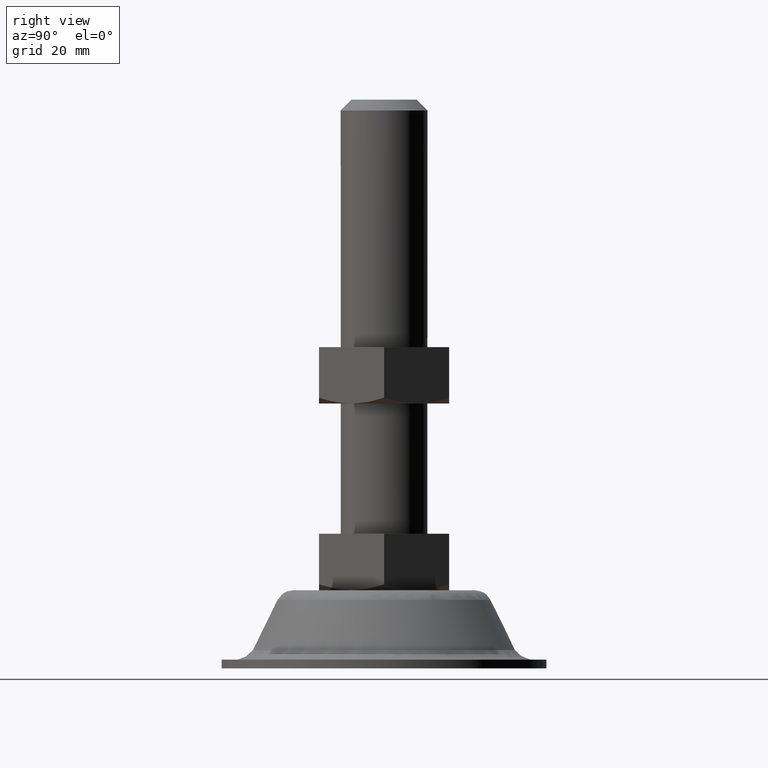
[diagram: clean part render]
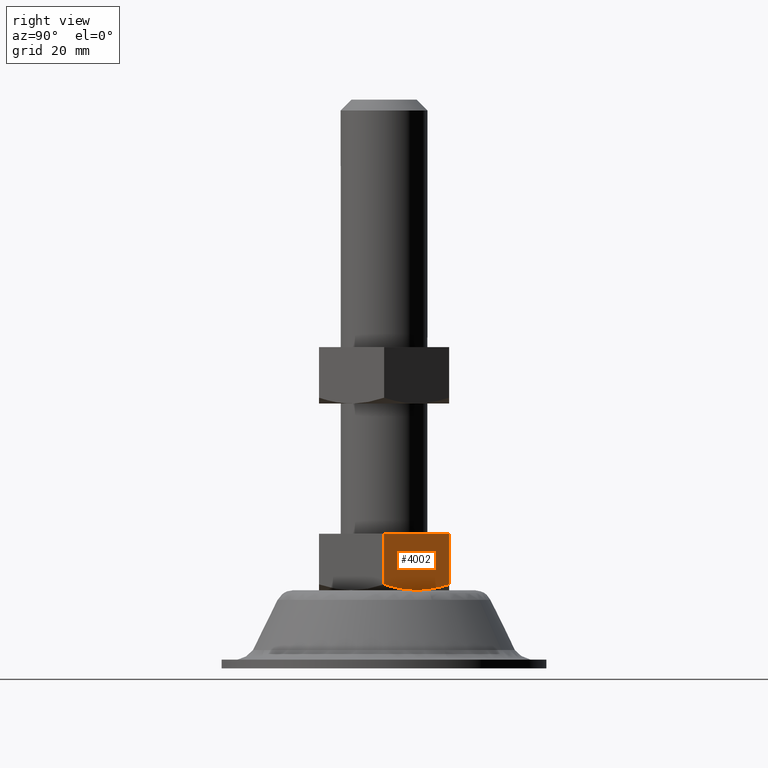
[diagram: same view with one face highlighted and labeled with its STEP entity id]
A machine part, right view. The second image highlights one B-rep face of the part: STEP entity #4002.
In plain terms, the highlighted face is a freeform B-spline surface patch.
Its self-contained STEP definition (entity closure, byte-faithful):
#2701=CARTESIAN_POINT('',(8.639746000000001,15.0,19.345671394023402));
#2702=VERTEX_POINT('',#2701);
#2725=CARTESIAN_POINT('',(17.300000000000001,-1.447629E-015,19.339745951230899));
#2726=VERTEX_POINT('',#2725);
#2727=CARTESIAN_POINT('',(17.300000000000001,-1.447629E-015,19.339745951230899));
#2728=CARTESIAN_POINT('',(16.592941722767890,1.224660865429819,18.931525664537759));
#2729=CARTESIAN_POINT('',(15.880722203566361,2.458261264219844,18.595166574799990));
#2730=CARTESIAN_POINT('',(14.801235094892681,4.327987790728773,18.245981053792178));
#2731=CARTESIAN_POINT('',(14.439541958482760,4.954458682477307,18.155540189446029));
#2732=CARTESIAN_POINT('',(13.711936844397590,6.214707713426930,18.033398389028552));
#2733=CARTESIAN_POINT('',(13.346021212827759,6.848492181359092,18.001748326998712));
#2734=CARTESIAN_POINT('',(12.885799685170850,7.645619253481176,18.001546577077889));
#2735=CARTESIAN_POINT('',(12.793614645803340,7.805288426061184,18.003465697697191));
#2736=CARTESIAN_POINT('',(12.608961067811620,8.125117806339850,18.011251166375111));
#2737=CARTESIAN_POINT('',(12.516661840701390,8.284984757892692,18.017113104138250));
#2738=CARTESIAN_POINT('',(12.240427566274510,8.763436558082763,18.040486526452241));
#2739=CARTESIAN_POINT('',(12.056912984918890,9.081293138309430,18.063800979005290));
#2740=CARTESIAN_POINT('',(11.508210259183770,10.031674141687260,18.155931109065261));
#2741=CARTESIAN_POINT('',(11.144867414517419,10.661002411966059,18.246985155436430));
#2742=CARTESIAN_POINT('',(10.061320491401830,12.537760743388411,18.598259512653328));
#2743=CARTESIAN_POINT('',(9.347572270797711,13.774008930688920,18.936281682498429));
#2744=CARTESIAN_POINT('',(8.639746000000001,15.0,19.345671394023402));
#2745=B_SPLINE_CURVE_WITH_KNOTS('',3,(#2727,#2728,#2729,#2730,#2731,#2732,#2733,#2734,#2735,#2736,#2737,#2738,#2739,#2740,#2741,#2742,#2743,#2744),.UNSPECIFIED.,.F.,.U.,(4,2,2,2,2,2,2,2,4),(0.0,0.250000000000000,0.375000000000000,0.500000000000001,0.531250000000001,0.562500000000001,0.625000000000001,0.750000000000000,1.0),.UNSPECIFIED.);
#2746=EDGE_CURVE('',#2726,#2702,#2745,.T.);
#3894=CARTESIAN_POINT('',(17.300000000000001,0.0,31.0));
#3895=VERTEX_POINT('',#3894);
#3901=CARTESIAN_POINT('',(8.639746000000001,15.0,31.0));
#3902=VERTEX_POINT('',#3901);
#3903=CARTESIAN_POINT('',(8.639746000000001,15.0,31.0));
#3904=CARTESIAN_POINT('',(17.300000000000001,0.0,31.0));
#3905=QUASI_UNIFORM_CURVE('',1,(#3903,#3904),.UNSPECIFIED.,.F.,.U.);
#3906=EDGE_CURVE('',#3902,#3895,#3905,.T.);
#3978=CARTESIAN_POINT('',(17.300000000000001,0.0,31.0));
#3979=CARTESIAN_POINT('',(17.300000000000001,-1.447629E-015,19.339745951230899));
#3980=QUASI_UNIFORM_CURVE('',1,(#3978,#3979),.UNSPECIFIED.,.F.,.U.);
#3981=EDGE_CURVE('',#3895,#2726,#3980,.T.);
#3987=CARTESIAN_POINT('',(17.732579507922232,-0.749249689308546,17.352318113454579));
#3988=CARTESIAN_POINT('',(8.207166104934267,15.749250359860810,17.352318113454579));
#3989=CARTESIAN_POINT('',(17.732579507922232,-0.749249689308546,31.649270966330651));
#3990=CARTESIAN_POINT('',(8.207166104934267,15.749250359860810,31.649270966330651));
#3991=B_SPLINE_SURFACE_WITH_KNOTS('',1,1,((#3987,#3989),(#3988,#3990)),.UNSPECIFIED.,.F.,.F.,.U.,(2,2),(2,2),(0.0,19.050826868413459),(0.0,14.296952852876069),.UNSPECIFIED.);
#3992=ORIENTED_EDGE('',*,*,#3981,.T.);
#3993=ORIENTED_EDGE('',*,*,#2746,.T.);
#3994=CARTESIAN_POINT('',(8.639746000000001,15.0,31.0));
#3995=CARTESIAN_POINT('',(8.639746000000001,15.0,19.345671394023402));
#3996=QUASI_UNIFORM_CURVE('',1,(#3994,#3995),.UNSPECIFIED.,.F.,.U.);
#3997=EDGE_CURVE('',#3902,#2702,#3996,.T.);
#3998=ORIENTED_EDGE('',*,*,#3997,.F.);
#3999=ORIENTED_EDGE('',*,*,#3906,.T.);
#4000=EDGE_LOOP('',(#3992,#3993,#3998,#3999));
#4001=FACE_OUTER_BOUND('',#4000,.T.);
#4002=ADVANCED_FACE('',(#4001),#3991,.T.);